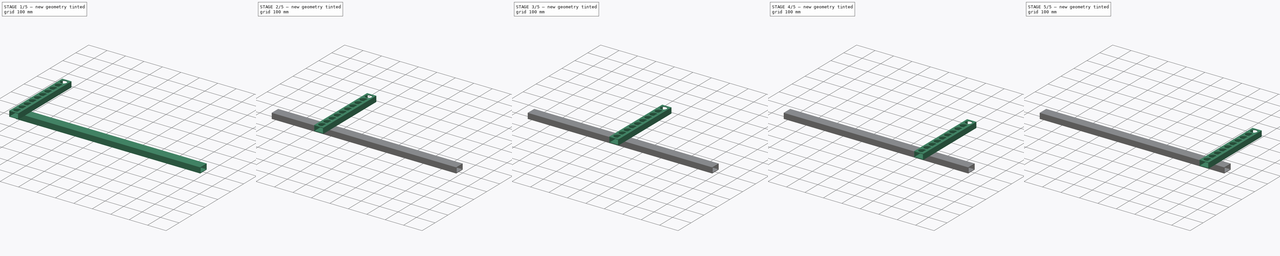
[diagram: build sequence overview — one tinted view per stage of 5, left to right]
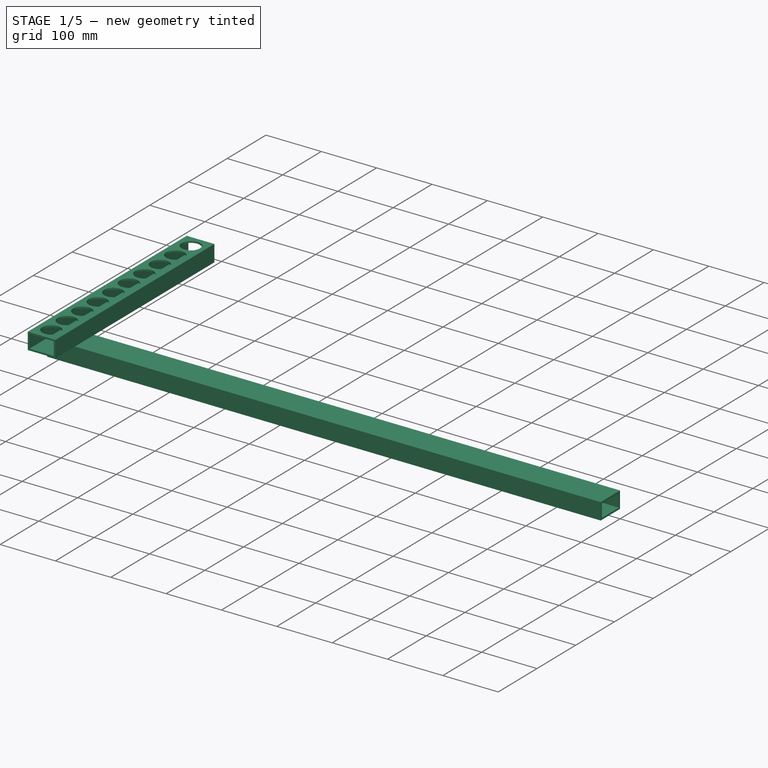
[diagram: stage 1 of 5 — iso view after this stage's code; geometry added in this stage tinted green]
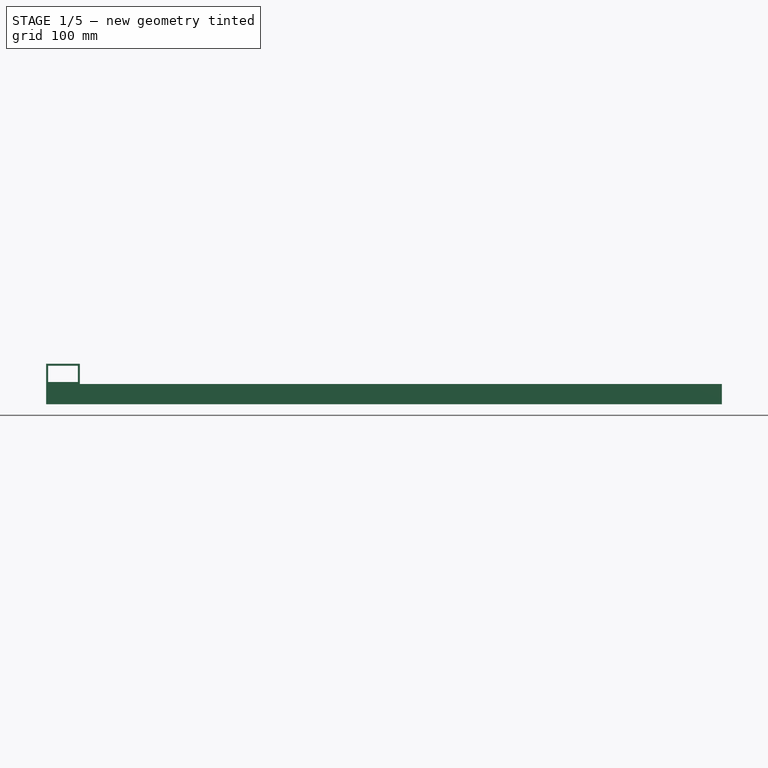
[diagram: stage 1 of 5 — front view after this stage's code; geometry added in this stage tinted green]
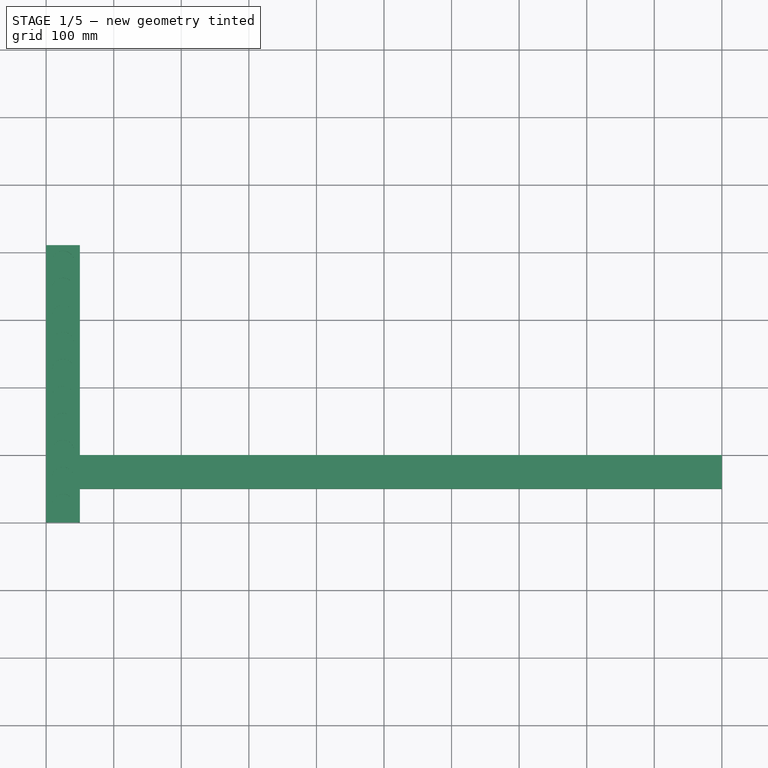
[diagram: stage 1 of 5 — top view after this stage's code; geometry added in this stage tinted green]
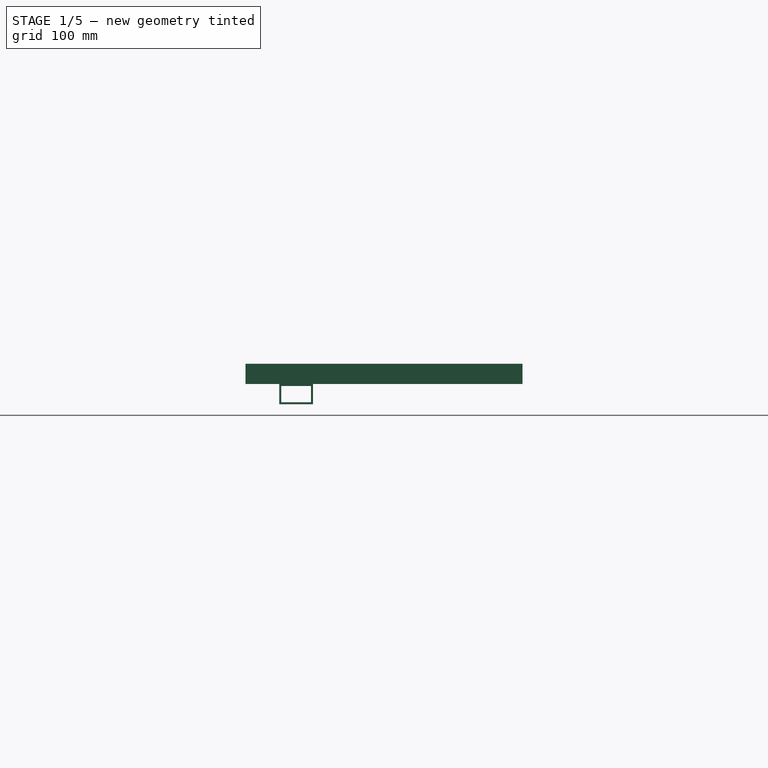
[diagram: stage 1 of 5 — right view after this stage's code; geometry added in this stage tinted green]
FCSTD DOCUMENT  (FreeCAD 0.21R33771 (Git))
Label: table_soudure_v2
License: All rights reserved
LicenseURL: https://en.wikipedia.org/wiki/All_rights_reserved
objects: PartDesign::Body×21, PartDesign::FeatureBase×19, Sketcher::SketchObject×4, PartDesign::Pad×2, PartDesign::Hole×1, App::Part×1
note: 50 computed .brp shape members not serialized (recipe doc carries the construction recipe); baked Part::Feature solids carry a one-line shape summary decoded from their .brp

FEATURE [Sketcher::SketchObject] Sketch001
  FullyConstrained = true
  MapMode = 5
  Placement = pos=(0,0,0) rot=(1,0,0;1.5708rad)
  Support = -> [XZ_Plane]
  sketch-geometry (8):
    g0: LineSegment StartX=-500 StartY=15 StartZ=0 EndX=-450 EndY=15 EndZ=0
    g1: LineSegment StartX=-450 StartY=15 StartZ=0 EndX=-450 EndY=-15 EndZ=0
    g2: LineSegment StartX=-450 StartY=-15 StartZ=0 EndX=-500 EndY=-15 EndZ=0
    g3: LineSegment StartX=-500 StartY=-15 StartZ=0 EndX=-500 EndY=15 EndZ=0
    g4: LineSegment StartX=-497 StartY=12 StartZ=0 EndX=-453 EndY=12 EndZ=0
    g5: LineSegment StartX=-453 StartY=12 StartZ=0 EndX=-453 EndY=-12 EndZ=0
    g6: LineSegment StartX=-453 StartY=-12 StartZ=0 EndX=-497 EndY=-12 EndZ=0
    g7: LineSegment StartX=-497 StartY=-12 StartZ=0 EndX=-497 EndY=12 EndZ=0
  constraints (22):
    c: Coincident(g0,g1)
    c: Coincident(g1,g2)
    c: Coincident(g2,g3)
    c: Coincident(g3,g0)
    c: Symmetric(g0,g2,g-1)
    c: Symmetric(g0,g1,g-1)
    c: DistanceX(g0,g0) = 50
    c: DistanceY(g1,g1) = 30
    c: Equal(g1,g3)
    c: DistanceX(g2,g-1) = 500
    c: Coincident(g4,g5)
    c: Coincident(g5,g6)
    c: Coincident(g6,g7)
    c: Coincident(g7,g4)
    c: Horizontal(g4)
    c: Horizontal(g6)
    c: Vertical(g5)
    c: Vertical(g7)
    c: DistanceY(g4,g0) = 3
    c: DistanceY(g2,g6) = 3
    c: DistanceX(g4,g0) = 3
    c: DistanceX(g0,g4) = 3
FEATURE [PartDesign::Pad] Pad
  Direction = (0,-1,2e-16)
  Length = 410
  Length2 = 10
  Placement = pos=(0,0,0) rot=(1,0,0;1.5708rad)
  Profile = -> Sketch001
  ReferenceAxis = -> Sketch001 [N_Axis]
  Reversed = true
  Type = 0
FEATURE [Sketcher::SketchObject] Sketch
  ExternalGeometry = -> [Pad]
  FullyConstrained = true
  MapMode = 5
  Placement = pos=(0,9.9e-15,15) rot=(0,0,1;3.14159rad)
  Support = -> [Pad]
  sketch-geometry (19):
    g0: Circle CenterX=475 CenterY=-385 CenterZ=0 NormalX=0 NormalY=0 NormalZ=1 AngleXU=0 Radius=10
    g1: Circle CenterX=475 CenterY=-345 CenterZ=0 NormalX=0 NormalY=0 NormalZ=1 AngleXU=0 Radius=10
    g2: LineSegment StartX=475 StartY=-385 StartZ=0 EndX=475 EndY=-345 EndZ=0
    g3: Circle CenterX=475 CenterY=-305 CenterZ=0 NormalX=0 NormalY=0 NormalZ=1 AngleXU=0 Radius=10
    g4: LineSegment StartX=475 StartY=-345 StartZ=0 EndX=475 EndY=-305 EndZ=0
    g5: Circle CenterX=475 CenterY=-265 CenterZ=0 NormalX=0 NormalY=0 NormalZ=1 AngleXU=0 Radius=10
    g6: LineSegment StartX=475 StartY=-305 StartZ=0 EndX=475 EndY=-265 EndZ=0
    g7: Circle CenterX=475 CenterY=-225 CenterZ=0 NormalX=0 NormalY=0 NormalZ=1 AngleXU=0 Radius=10
    g8: LineSegment StartX=475 StartY=-265 StartZ=0 EndX=475 EndY=-225 EndZ=0
    g9: Circle CenterX=475 CenterY=-185 CenterZ=0 NormalX=0 NormalY=0 NormalZ=1 AngleXU=0 Radius=10
    g10: LineSegment StartX=475 StartY=-225 StartZ=0 EndX=475 EndY=-185 EndZ=0
    g11: Circle CenterX=475 CenterY=-145 CenterZ=0 NormalX=0 NormalY=0 NormalZ=1 AngleXU=0 Radius=10
    g12: LineSegment StartX=475 StartY=-185 StartZ=0 EndX=475 EndY=-145 EndZ=0
    g13: Circle CenterX=475 CenterY=-105 CenterZ=0 NormalX=0 NormalY=0 NormalZ=1 AngleXU=0 Radius=10
    g14: LineSegment StartX=475 StartY=-145 StartZ=0 EndX=475 EndY=-105 EndZ=0
    g15: Circle CenterX=475 CenterY=-65 CenterZ=0 NormalX=0 NormalY=0 NormalZ=1 AngleXU=0 Radius=10
    g16: LineSegment StartX=475 StartY=-105 StartZ=0 EndX=475 EndY=-65 EndZ=0
    g17: Circle CenterX=475 CenterY=-25 CenterZ=0 NormalX=0 NormalY=0 NormalZ=1 AngleXU=0 Radius=10
    g18: LineSegment StartX=475 StartY=-65 StartZ=0 EndX=475 EndY=-25 EndZ=0
  constraints (48):
    c: DistanceX(g0,g-4) = 25
    c: DistanceY(g-5,g0) = 25
    c: Radius(g0) = 10
    c: Radius(g1) = 10
    c: Coincident(g0,g2)
    c: Coincident(g1,g2)
    c: Distance(g2) = 40
    c: Angle(g2) = 1.5708
    c: Radius(g3) = 10
    c: Coincident(g1,g4)
    c: Coincident(g3,g4)
    c: Equal(g2,g4)
    c: Parallel(g4,g2)
    c: Radius(g5) = 10
    c: Coincident(g3,g6)
    c: Coincident(g5,g6)
    c: Equal(g2,g6)
    c: Parallel(g6,g2)
    c: Radius(g7) = 10
    c: Coincident(g5,g8)
    c: Coincident(g7,g8)
    c: Equal(g2,g8)
    c: Parallel(g8,g2)
    c: Radius(g9) = 10
    c: Coincident(g7,g10)
    c: Coincident(g9,g10)
    c: Equal(g2,g10)
    c: Parallel(g10,g2)
    c: Radius(g11) = 10
    c: Coincident(g9,g12)
    c: Coincident(g11,g12)
    c: Equal(g2,g12)
    c: Parallel(g12,g2)
    c: Radius(g13) = 10
    c: Coincident(g11,g14)
    c: Coincident(g13,g14)
    c: Equal(g2,g14)
    c: Parallel(g14,g2)
    c: Radius(g15) = 10
    c: Coincident(g13,g16)
    c: Coincident(g15,g16)
    c: Equal(g2,g16)
    c: Parallel(g16,g2)
    c: Radius(g17) = 10
    c: Coincident(g15,g18)
    c: Coincident(g17,g18)
    c: Equal(g2,g18)
    c: Parallel(g18,g2)
FEATURE [PartDesign::Hole] Hole
  BaseFeature = -> Pad
  CustomThreadClearance = 0
  Depth = 3
  DepthType = 0
  Diameter = 33
  DrillForDepth = false
  DrillPoint = 1
  DrillPointAngle = 118
  HoleCutCountersinkAngle = 90
  HoleCutCustomValues = false
  HoleCutDepth = 0
  HoleCutDiameter = 6.1
  HoleCutType = 0
  ModelThread = true
  Placement = pos=(0,0,0) rot=(1,0,0;1.5708rad)
  Profile = -> Sketch
  Tapered = false
  TaperedAngle = 90
  ThreadClass = 0
  ThreadDepth = 3
  ThreadDepthType = 0
  ThreadDirection = 0
  ThreadFit = 0
  ThreadSize = 28
  ThreadType = 1
  Threaded = false
  UseCustomThreadClearance = false
FEATURE [PartDesign::Body] Body  label="Corps"
  Origin = -> Origin
  Tip = -> Hole
FEATURE [PartDesign::FeatureBase] Clone
  BaseFeature = -> Body
FEATURE [PartDesign::Body] Body031
  Group = -> [Clone017]
  Origin = -> Origin031
  Placement = pos=(53,0,0) rot=(0,0,1;0rad)
  Tip = -> Clone017
FEATURE [Sketcher::SketchObject] Sketch003
  FullyConstrained = true
  MapMode = 5
  Support = -> [XY_Plane019]
FEATURE [PartDesign::Body] Body019  label="Corps001"
  Group = -> [Sketch003]
  Origin = -> Origin019
FEATURE [PartDesign::FeatureBase] Clone018
  BaseFeature = -> Body019
FEATURE [PartDesign::Body] Body032
  Group = -> [Clone018]
  Origin = -> Origin032
  Placement = pos=(0,250,0) rot=(0,0,1;0rad)
  Tip = -> Clone018
FEATURE [App::Part] Part
  Group = -> [Body032,Body031,Body030,Body022,Body023,Body024,Body025,Body026,Body027,Body028,Body029,Body001,Body002,Body003,Body004,Body005,Body006,Body019,Body020,Body021,Body,Sketch001,Pad,Sketch,Sketch002,Pad001,Hole]
  Origin = -> Origin033
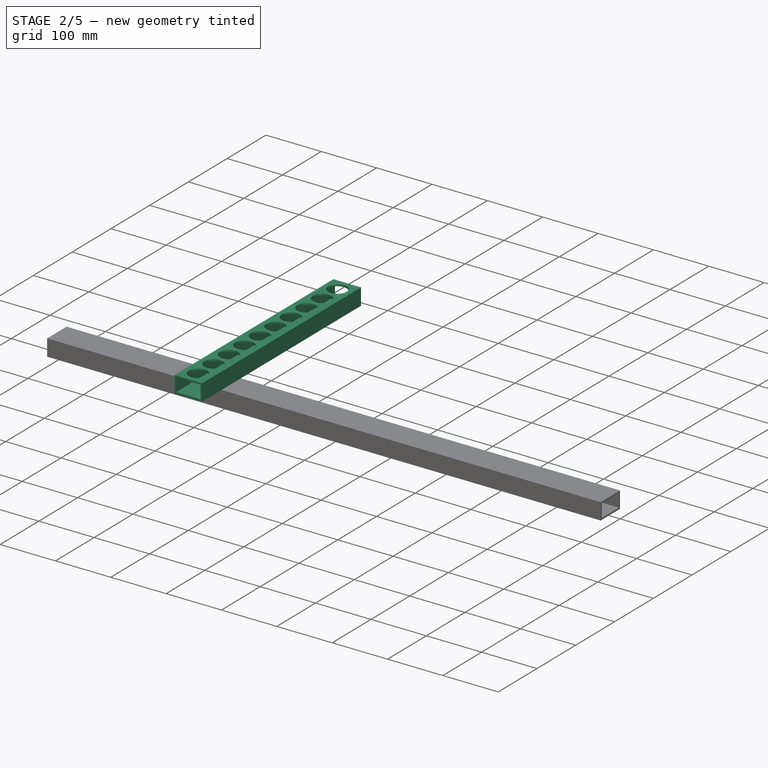
[diagram: stage 2 of 5 — iso view after this stage's code; geometry added in this stage tinted green]
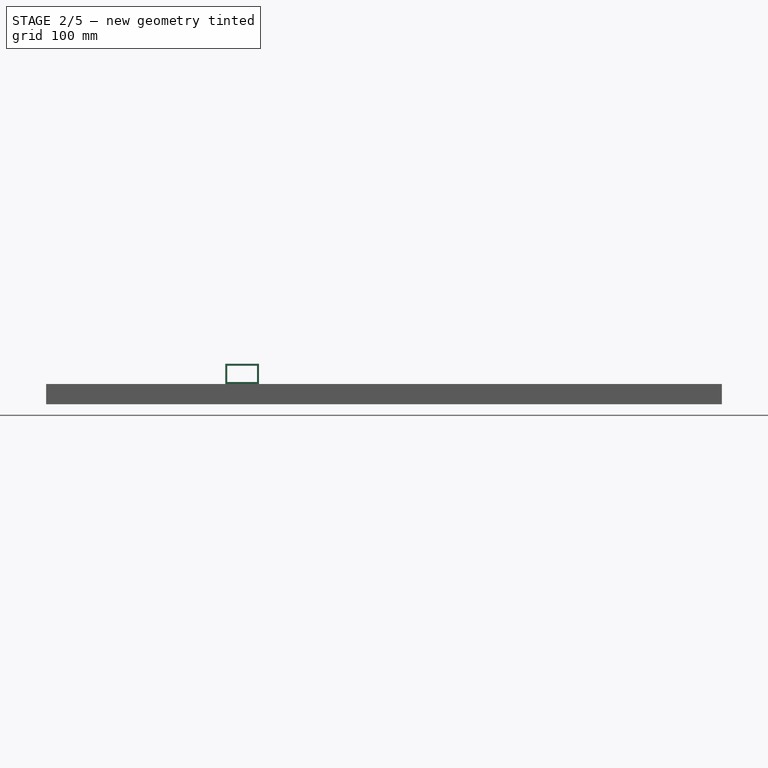
[diagram: stage 2 of 5 — front view after this stage's code; geometry added in this stage tinted green]
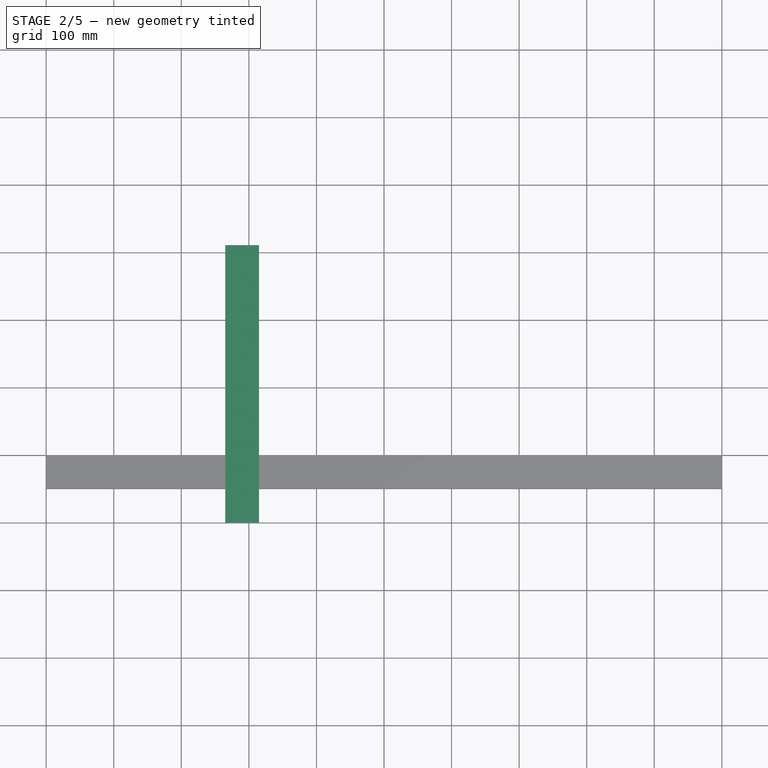
[diagram: stage 2 of 5 — top view after this stage's code; geometry added in this stage tinted green]
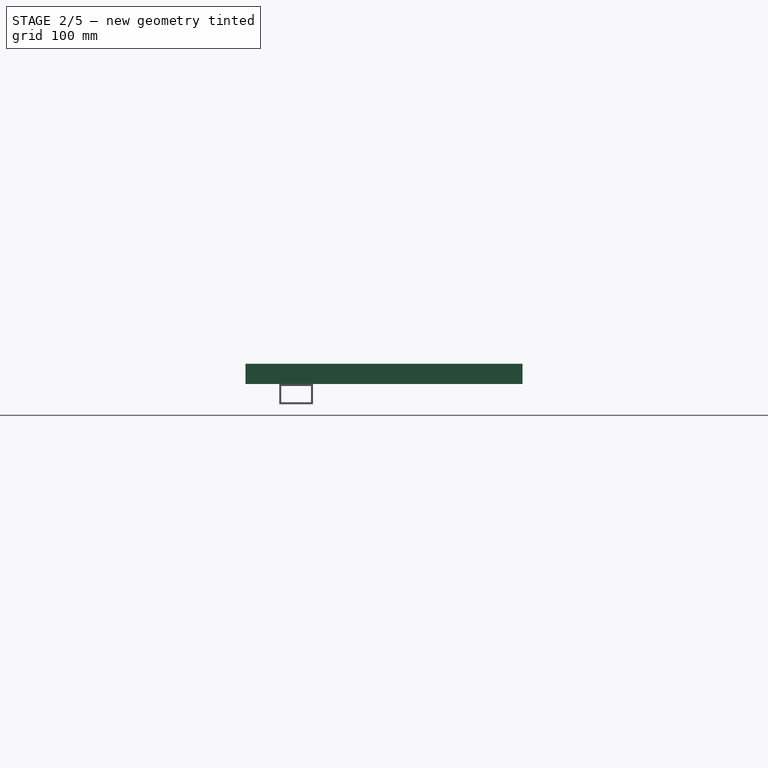
[diagram: stage 2 of 5 — right view after this stage's code; geometry added in this stage tinted green]
FEATURE [PartDesign::Body] Body001
  Group = -> [Clone]
  Origin = -> Origin001
  Placement = pos=(53,0,0) rot=(0,0,1;0rad)
  Tip = -> Clone
FEATURE [PartDesign::FeatureBase] Clone001
  BaseFeature = -> Body001
  Placement = pos=(53,0,0) rot=(0,0,1;0rad)
FEATURE [PartDesign::Body] Body002
  Group = -> [Clone001]
  Origin = -> Origin002
  Placement = pos=(53,0,0) rot=(0,0,1;0rad)
  Tip = -> Clone001
FEATURE [PartDesign::FeatureBase] Clone002
  BaseFeature = -> Body002
  Placement = pos=(53,0,0) rot=(0,0,1;0rad)
FEATURE [PartDesign::Body] Body003
  Group = -> [Clone002]
  Origin = -> Origin003
  Placement = pos=(53,0,0) rot=(0,0,1;0rad)
  Tip = -> Clone002
FEATURE [PartDesign::FeatureBase] Clone003
  BaseFeature = -> Body003
  Placement = pos=(53,0,0) rot=(0,0,1;0rad)
FEATURE [PartDesign::Body] Body004
  Group = -> [Clone003]
  Origin = -> Origin004
  Placement = pos=(53,0,0) rot=(0,0,1;0rad)
  Tip = -> Clone003
FEATURE [PartDesign::FeatureBase] Clone004
  BaseFeature = -> Body004
  Placement = pos=(53,0,0) rot=(0,0,1;0rad)
FEATURE [PartDesign::Body] Body005
  Group = -> [Clone004]
  Origin = -> Origin005
  Placement = pos=(53,0,0) rot=(0,0,1;0rad)
  Tip = -> Clone004
FEATURE [PartDesign::FeatureBase] Clone005
  BaseFeature = -> Body005
  Placement = pos=(53,0,0) rot=(0,0,1;0rad)
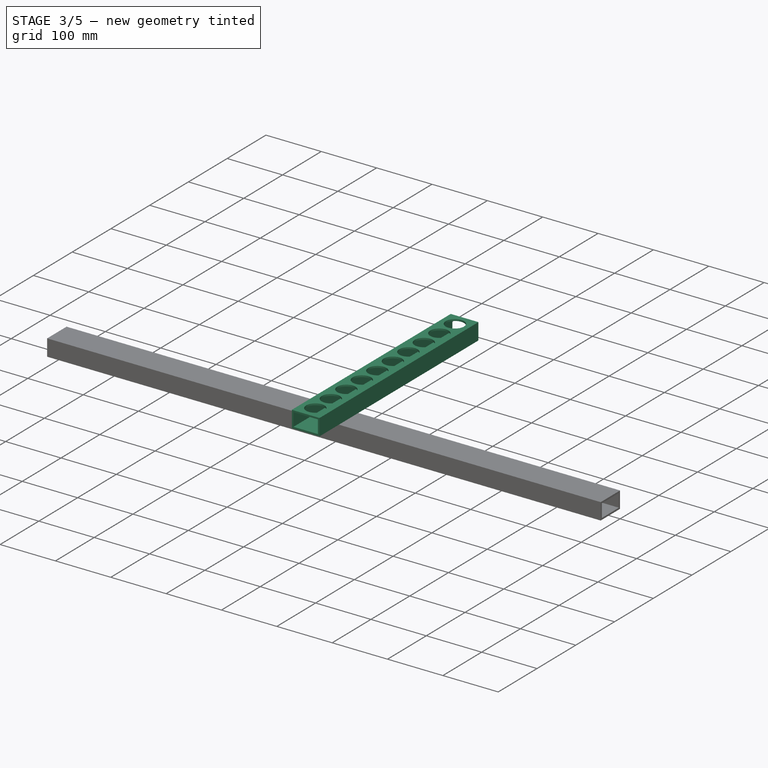
[diagram: stage 3 of 5 — iso view after this stage's code; geometry added in this stage tinted green]
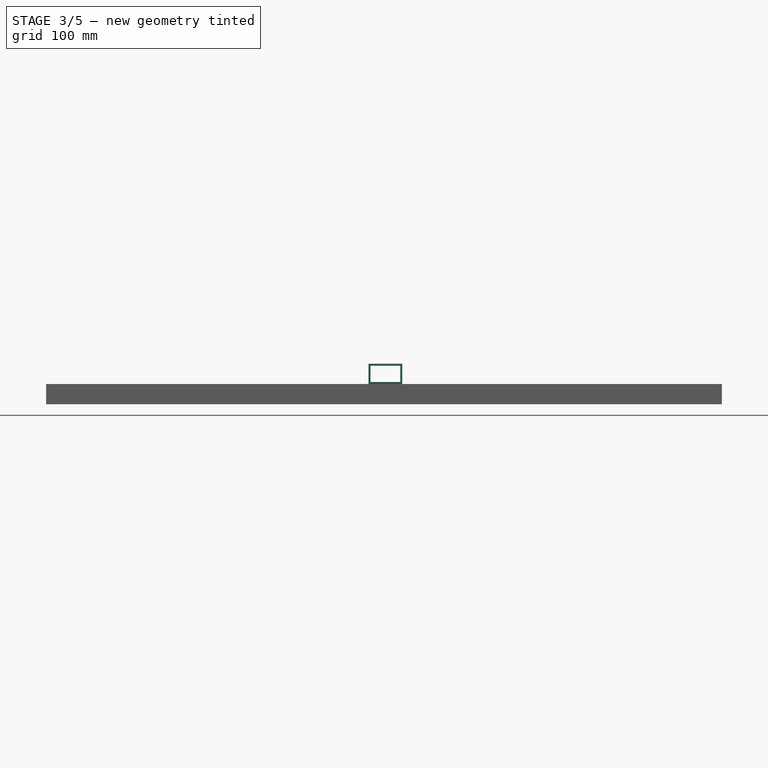
[diagram: stage 3 of 5 — front view after this stage's code; geometry added in this stage tinted green]
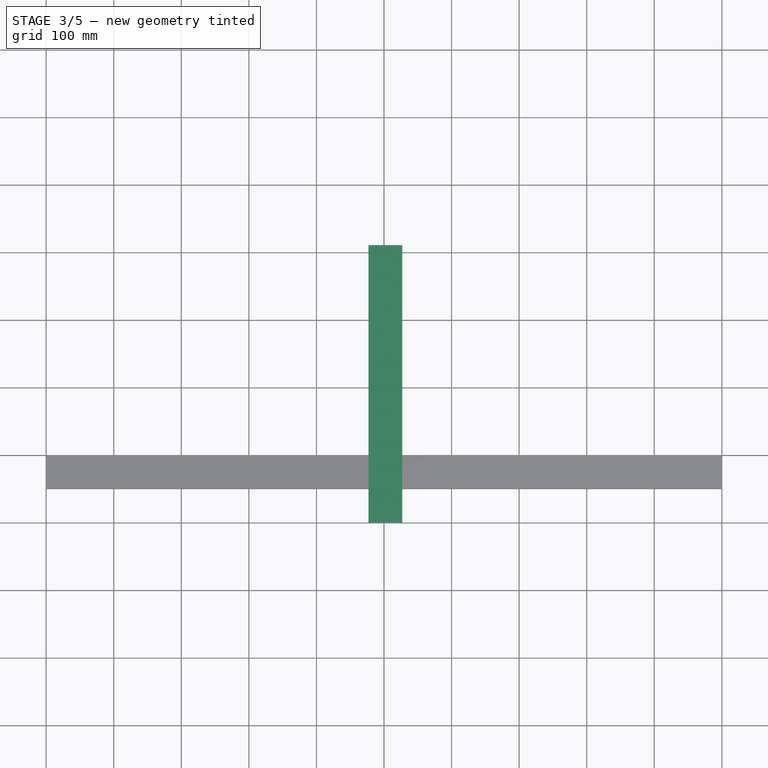
[diagram: stage 3 of 5 — top view after this stage's code; geometry added in this stage tinted green]
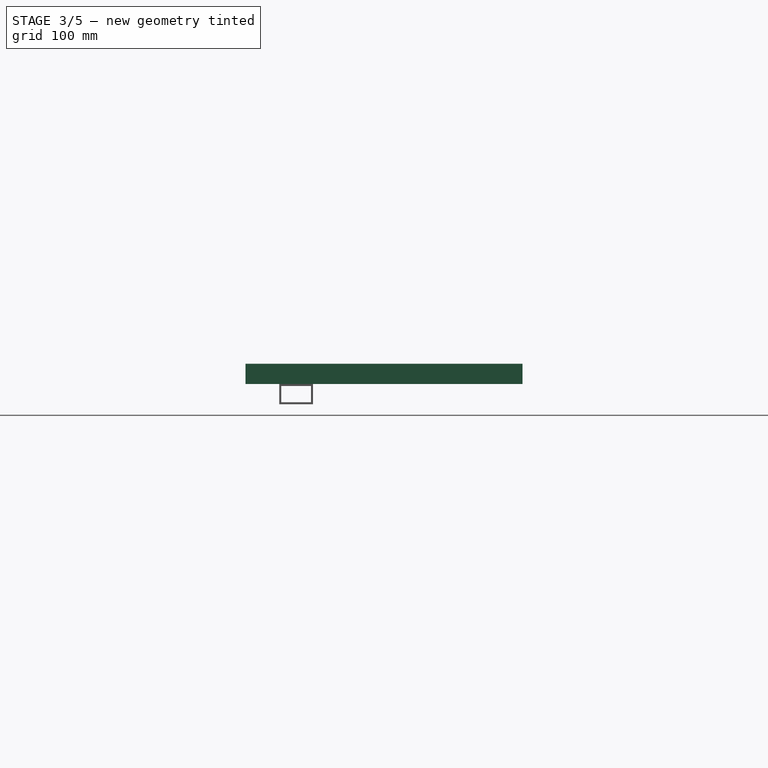
[diagram: stage 3 of 5 — right view after this stage's code; geometry added in this stage tinted green]
FEATURE [PartDesign::FeatureBase] Clone006
  BaseFeature = -> Body006
  Placement = pos=(53,0,0) rot=(0,0,1;0rad)
FEATURE [PartDesign::Body] Body020
  Group = -> [Clone006]
  Origin = -> Origin020
  Placement = pos=(53,0,0) rot=(0,0,1;0rad)
  Tip = -> Clone006
FEATURE [PartDesign::FeatureBase] Clone007
  BaseFeature = -> Body020
  Placement = pos=(53,0,0) rot=(0,0,1;0rad)
FEATURE [PartDesign::Body] Body021
  Group = -> [Clone007]
  Origin = -> Origin021
  Placement = pos=(53,0,0) rot=(0,0,1;0rad)
  Tip = -> Clone007
FEATURE [PartDesign::FeatureBase] Clone008
  BaseFeature = -> Body021
  Placement = pos=(53,0,0) rot=(0,0,1;0rad)
FEATURE [PartDesign::Body] Body022
  Group = -> [Clone008]
  Origin = -> Origin022
  Placement = pos=(53,0,0) rot=(0,0,1;0rad)
  Tip = -> Clone008
FEATURE [PartDesign::FeatureBase] Clone009
  BaseFeature = -> Body022
  Placement = pos=(53,0,0) rot=(0,0,1;0rad)
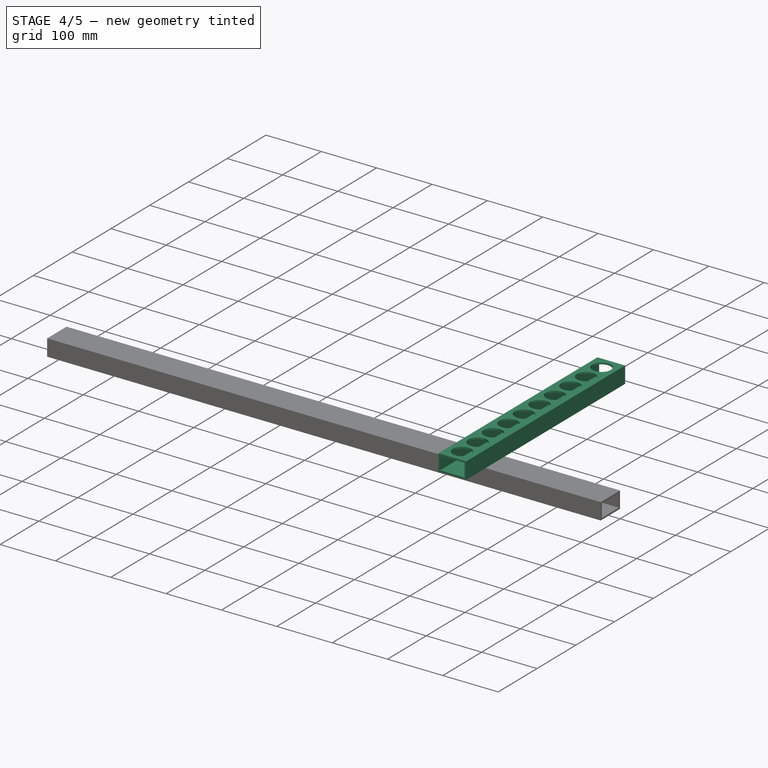
[diagram: stage 4 of 5 — iso view after this stage's code; geometry added in this stage tinted green]
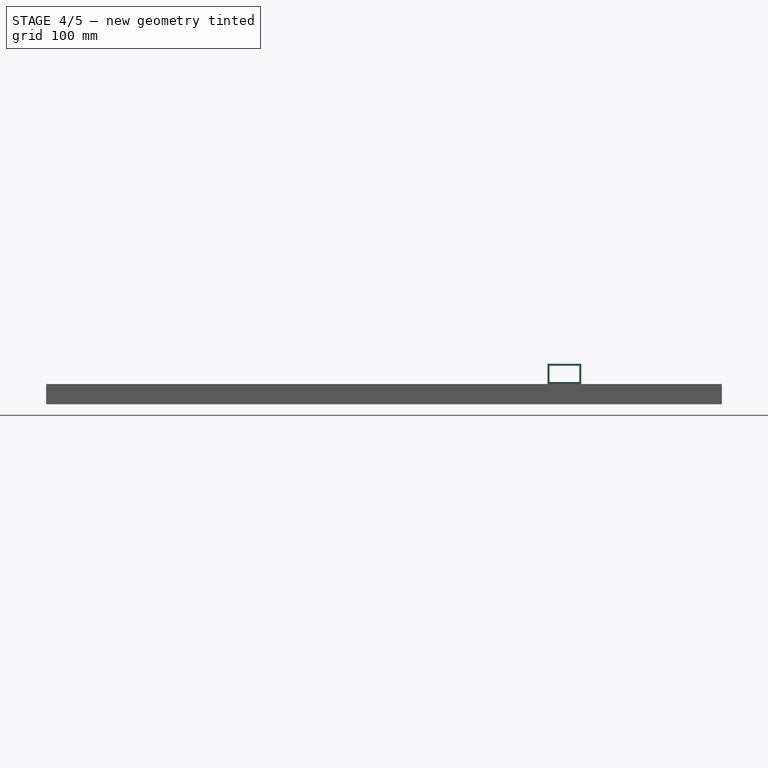
[diagram: stage 4 of 5 — front view after this stage's code; geometry added in this stage tinted green]
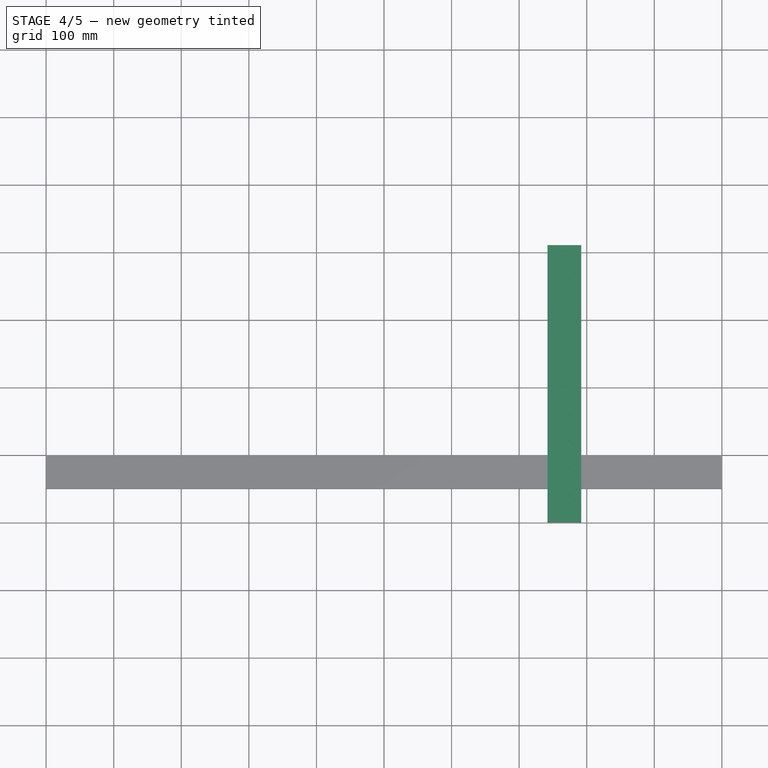
[diagram: stage 4 of 5 — top view after this stage's code; geometry added in this stage tinted green]
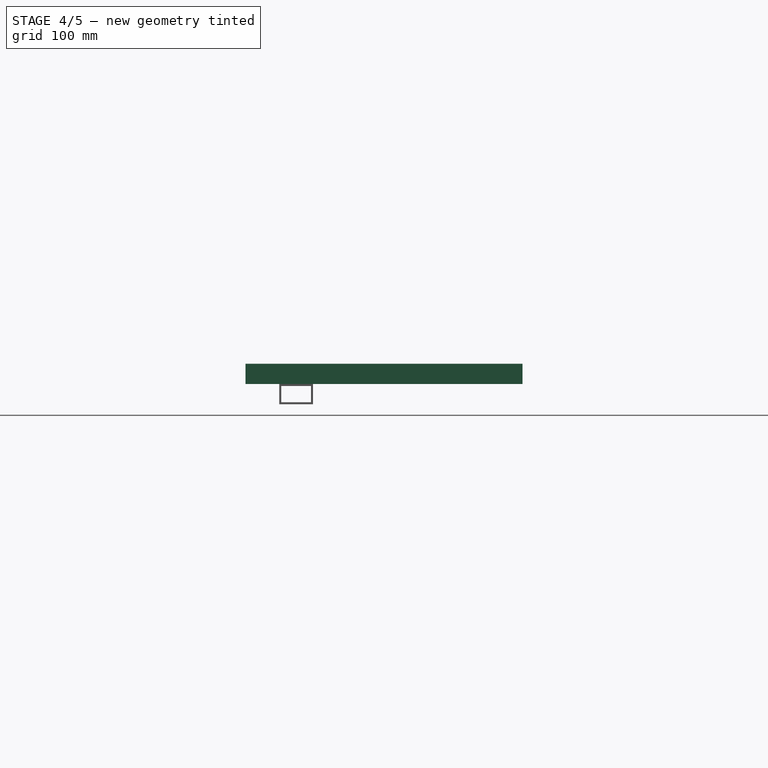
[diagram: stage 4 of 5 — right view after this stage's code; geometry added in this stage tinted green]
FEATURE [PartDesign::Body] Body023
  Group = -> [Clone009]
  Origin = -> Origin023
  Placement = pos=(53,0,0) rot=(0,0,1;0rad)
  Tip = -> Clone009
FEATURE [PartDesign::FeatureBase] Clone010
  BaseFeature = -> Body023
  Placement = pos=(53,0,0) rot=(0,0,1;0rad)
FEATURE [PartDesign::Body] Body024
  Group = -> [Clone010]
  Origin = -> Origin024
  Placement = pos=(53,0,0) rot=(0,0,1;0rad)
  Tip = -> Clone010
FEATURE [PartDesign::FeatureBase] Clone011
  BaseFeature = -> Body024
  Placement = pos=(53,0,0) rot=(0,0,1;0rad)
FEATURE [PartDesign::Body] Body025
  Group = -> [Clone011]
  Origin = -> Origin025
  Placement = pos=(53,0,0) rot=(0,0,1;0rad)
  Tip = -> Clone011
FEATURE [PartDesign::FeatureBase] Clone012
  BaseFeature = -> Body025
  Placement = pos=(53,0,0) rot=(0,0,1;0rad)
FEATURE [PartDesign::Body] Body026
  Group = -> [Clone012]
  Origin = -> Origin026
  Placement = pos=(53,0,0) rot=(0,0,1;0rad)
  Tip = -> Clone012
FEATURE [PartDesign::FeatureBase] Clone013
  BaseFeature = -> Body026
  Placement = pos=(53,0,0) rot=(0,0,1;0rad)
FEATURE [PartDesign::Body] Body027
  Group = -> [Clone013]
  Origin = -> Origin027
  Placement = pos=(53,0,0) rot=(0,0,1;0rad)
  Tip = -> Clone013
FEATURE [PartDesign::FeatureBase] Clone014
  BaseFeature = -> Body027
  Placement = pos=(53,0,0) rot=(0,0,1;0rad)
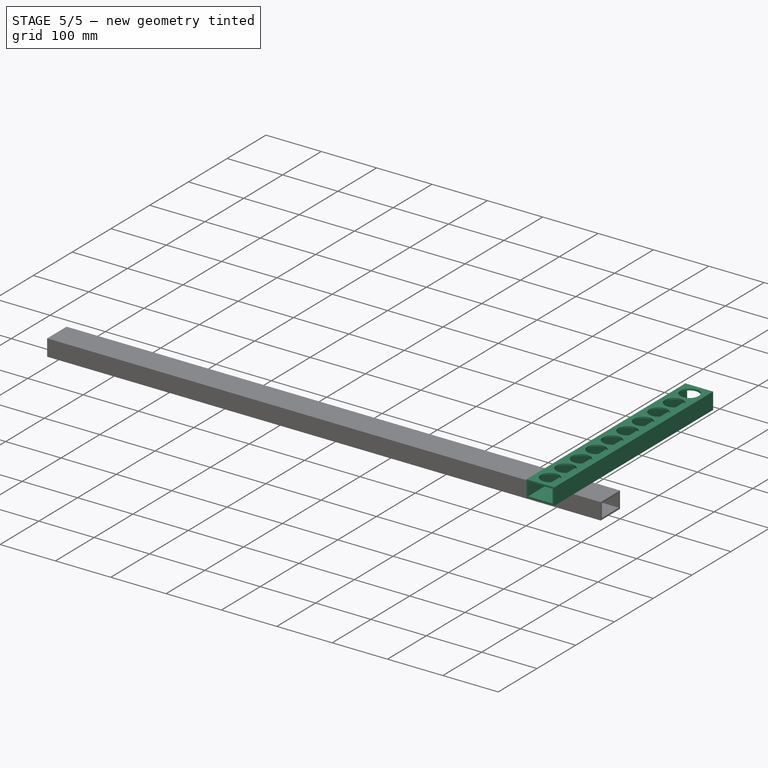
[diagram: stage 5 of 5 — iso view after this stage's code; geometry added in this stage tinted green]
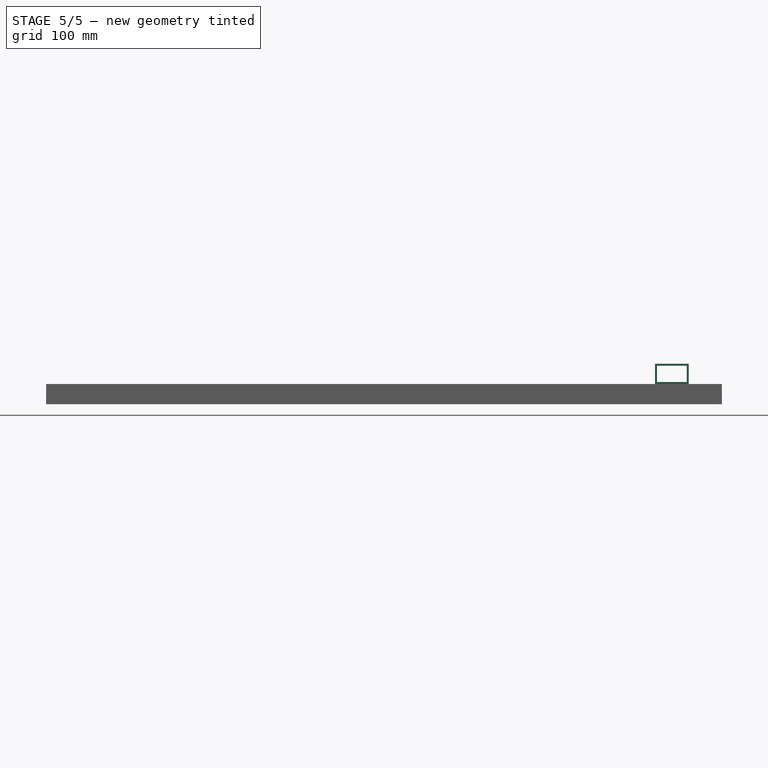
[diagram: stage 5 of 5 — front view after this stage's code; geometry added in this stage tinted green]
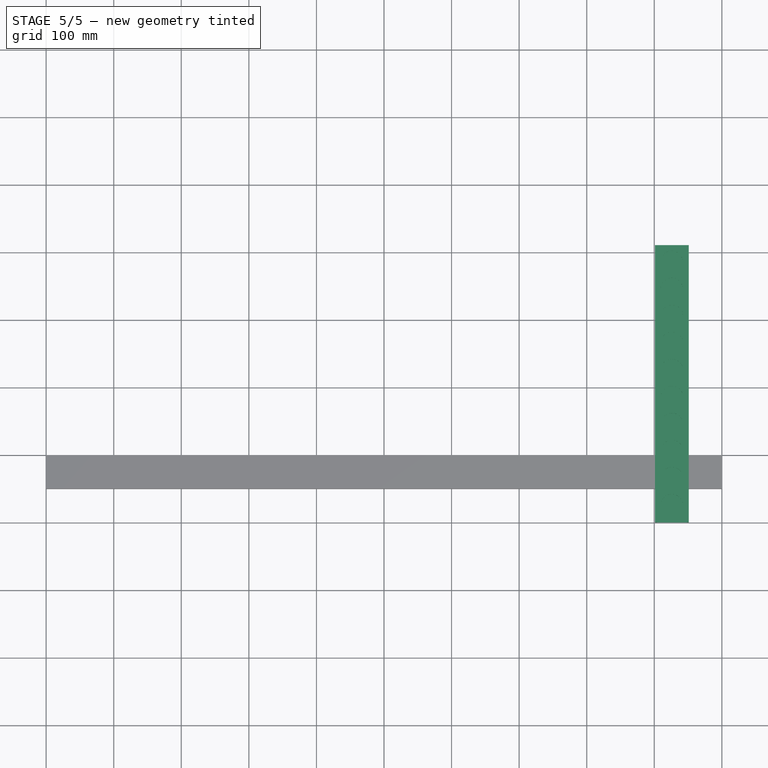
[diagram: stage 5 of 5 — top view after this stage's code; geometry added in this stage tinted green]
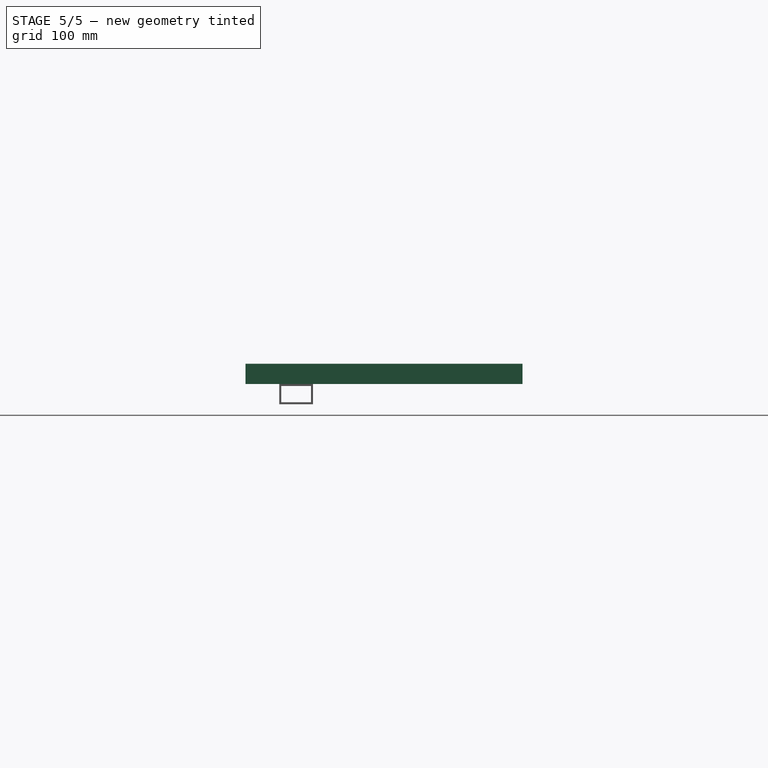
[diagram: stage 5 of 5 — right view after this stage's code; geometry added in this stage tinted green]
FEATURE [PartDesign::Body] Body006
  Group = -> [Clone005]
  Origin = -> Origin006
  Placement = pos=(53,0,0) rot=(0,0,1;0rad)
  Tip = -> Clone005
FEATURE [Sketcher::SketchObject] Sketch002
  ExternalGeometry = -> [Hole]
  FullyConstrained = true
  MapMode = 5
  Placement = pos=(0,0,0) rot=(0.57735,0.57735,0.57735;2.0944rad)
  Support = -> [YZ_Plane019]
  sketch-geometry (8):
    g0: LineSegment StartX=50 StartY=-15 StartZ=0 EndX=100 EndY=-15 EndZ=0
    g1: LineSegment StartX=100 StartY=-15 StartZ=0 EndX=100 EndY=-45 EndZ=0
    g2: LineSegment StartX=100 StartY=-45 StartZ=0 EndX=50 EndY=-45 EndZ=0
    g3: LineSegment StartX=50 StartY=-45 StartZ=0 EndX=50 EndY=-15 EndZ=0
    g4: LineSegment StartX=53 StartY=-18 StartZ=0 EndX=97 EndY=-18 EndZ=0
    g5: LineSegment StartX=97 StartY=-18 StartZ=0 EndX=97 EndY=-42 EndZ=0
    g6: LineSegment StartX=97 StartY=-42 StartZ=0 EndX=53 EndY=-42 EndZ=0
    g7: LineSegment StartX=53 StartY=-42 StartZ=0 EndX=53 EndY=-18 EndZ=0
  constraints (24):
    c: Coincident(g0,g1)
    c: Coincident(g1,g2)
    c: Coincident(g2,g3)
    c: Coincident(g3,g0)
    c: Horizontal(g0)
    c: Horizontal(g2)
    c: Vertical(g1)
    c: Vertical(g3)
    c: PointOnObject(g0,g-3)
    c: DistanceX(g2,g2) = 50
    c: DistanceY(g3,g3) = 30
    c: DistanceX(g-3,g0) = 50
    c: Coincident(g4,g5)
    c: Coincident(g5,g6)
    c: Coincident(g6,g7)
    c: Coincident(g7,g4)
    c: Horizontal(g4)
    c: Horizontal(g6)
    c: Vertical(g5)
    c: Vertical(g7)
    c: DistanceX(g0,g4) = 3
    c: DistanceY(g4,g0) = 3
    c: DistanceY(g2,g6) = 3
    c: DistanceX(g4,g0) = 3
FEATURE [PartDesign::Pad] Pad001
  Direction = (1,0,0)
  Length = 1000
  Length2 = 10
  Midplane = true
  Placement = pos=(0,0,0) rot=(1,1,1;2.0944rad)
  Profile = -> Sketch002
  ReferenceAxis = -> Sketch002 [N_Axis]
  Type = 0
  UseCustomVector = true
FEATURE [PartDesign::Body] Body028
  Group = -> [Clone014]
  Origin = -> Origin028
  Placement = pos=(53,0,0) rot=(0,0,1;0rad)
  Tip = -> Clone014
FEATURE [PartDesign::FeatureBase] Clone015
  BaseFeature = -> Body028
  Placement = pos=(53,0,0) rot=(0,0,1;0rad)
FEATURE [PartDesign::Body] Body029
  Group = -> [Clone015]
  Origin = -> Origin029
  Placement = pos=(53,0,0) rot=(0,0,1;0rad)
  Tip = -> Clone015
FEATURE [PartDesign::FeatureBase] Clone016
  BaseFeature = -> Body029
  Placement = pos=(53,0,0) rot=(0,0,1;0rad)
FEATURE [PartDesign::Body] Body030
  Group = -> [Clone016]
  Origin = -> Origin030
  Placement = pos=(53,0,0) rot=(0,0,1;0rad)
  Tip = -> Clone016
FEATURE [PartDesign::FeatureBase] Clone017
  BaseFeature = -> Body030
  Placement = pos=(53,0,0) rot=(0,0,1;0rad)
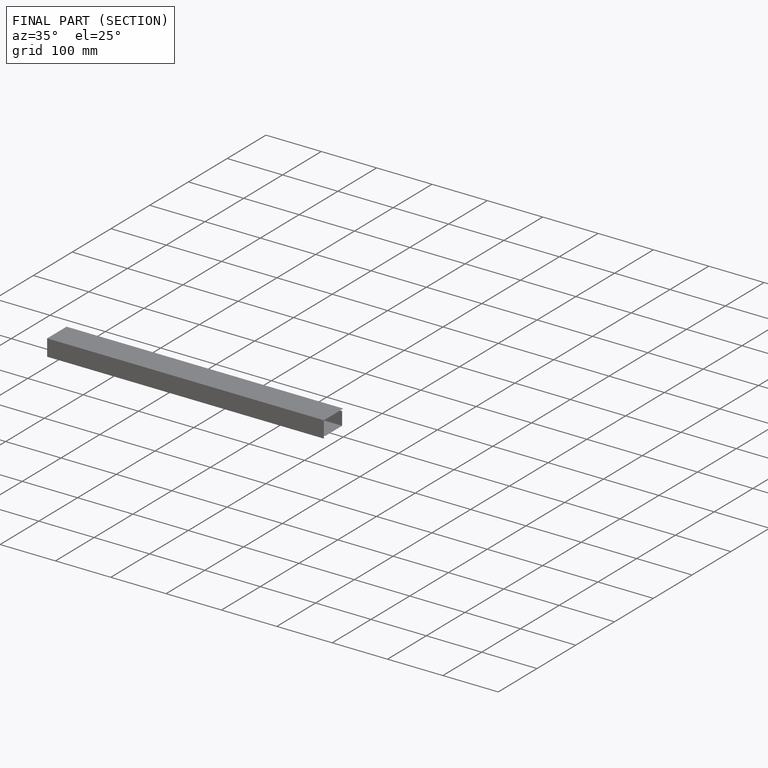
[diagram: finished part — half-section view (interior)]
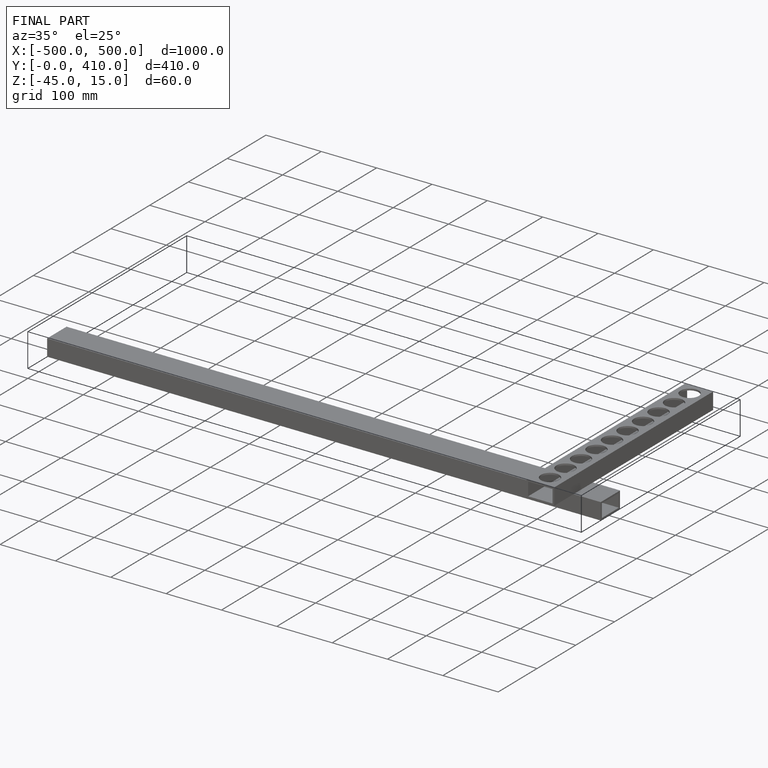
[diagram: finished part — iso view with bounding-box wireframe]
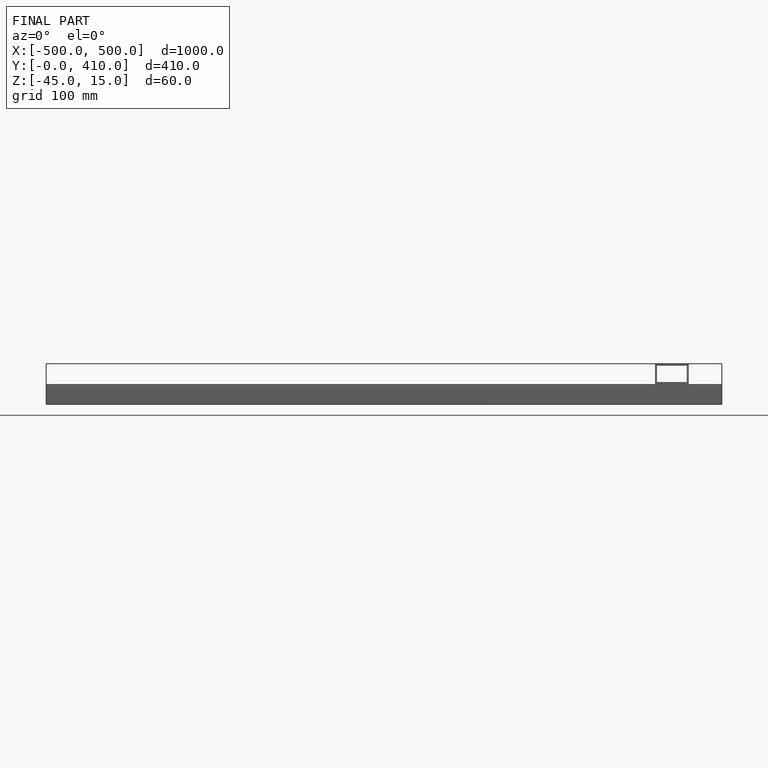
[diagram: finished part — front view with bounding-box wireframe]
